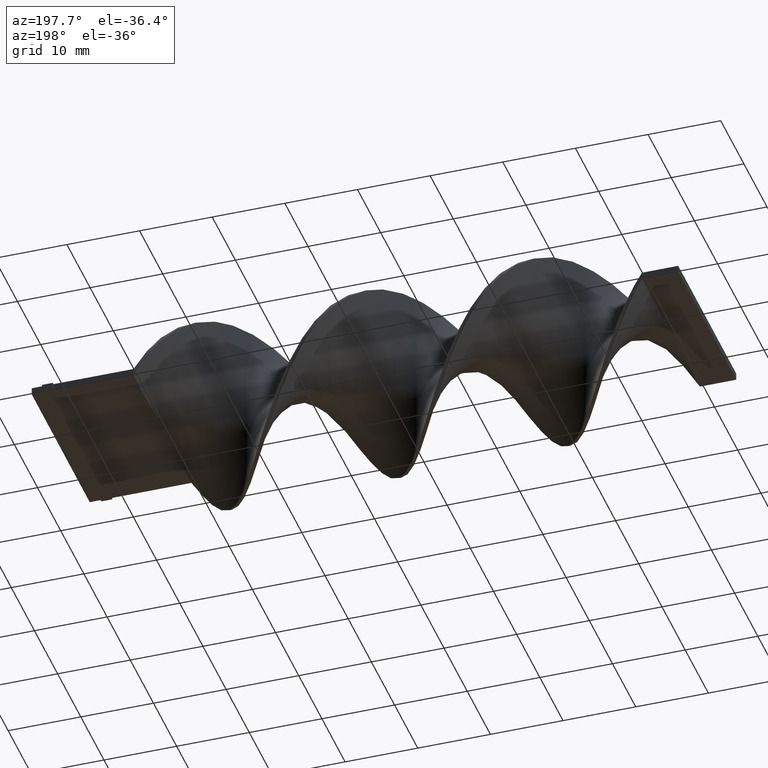
[diagram: clean part render]
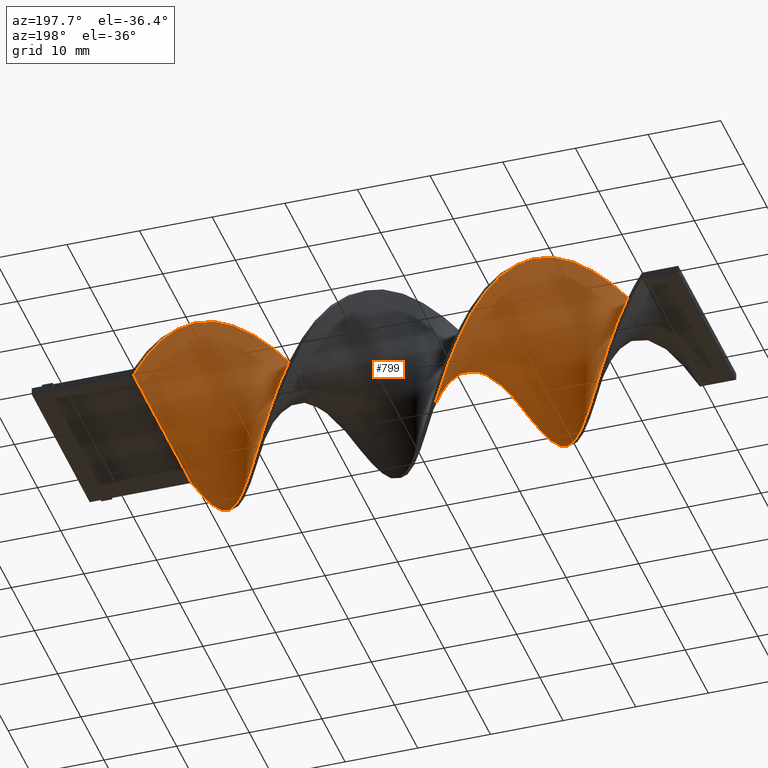
[diagram: same view with one face highlighted and labeled with its STEP entity id]
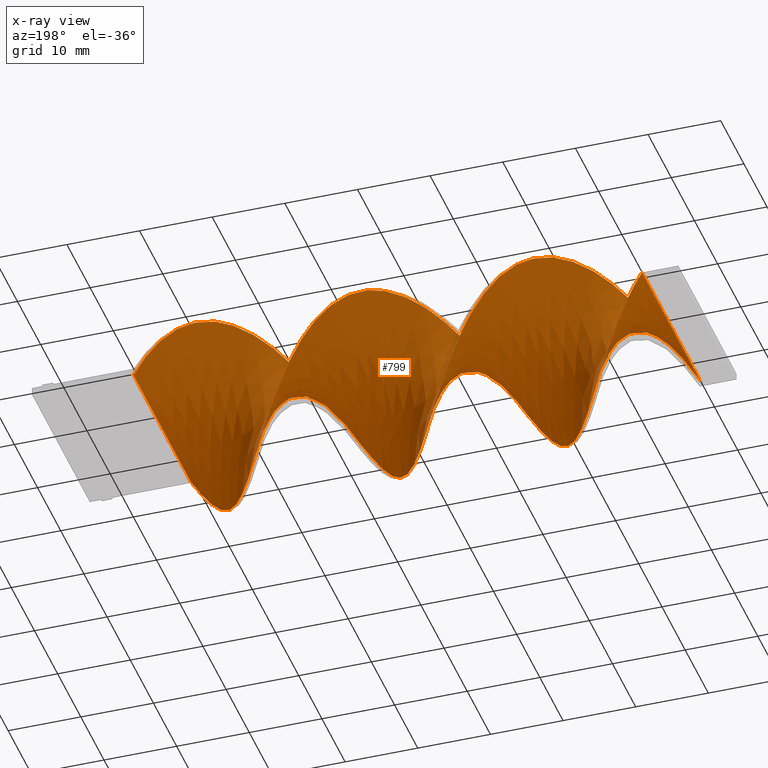
[diagram: x-ray of the same camera — body ghosted, the highlighted face saturated]
A machine part, auxiliary view. The second image highlights one B-rep face of the part: STEP entity #799.
The next image is the same camera in x-ray: the body ghosted, the highlighted face saturated — about 0% of this face is hidden behind the body in this view.
In plain terms, the highlighted face is a freeform B-spline surface patch.
Its self-contained STEP definition (entity closure, byte-faithful):
#1 = ORIENTED_EDGE ( 'NONE', *, *, #1241, .T. ) ;
#3 = CARTESIAN_POINT ( 'NONE',  ( -84.00000000000000000, -12.50000000000000178, 0.5000000000000015543 ) ) ;
#5 = CARTESIAN_POINT ( 'NONE',  ( -13.99999999999999467, -12.50000000000000178, -0.5000000000000000000 ) ) ;
#8 = CARTESIAN_POINT ( 'NONE',  ( -25.66666666666666785, 0.5036723384328388731, -12.59180846082103855 ) ) ;
#16 = CARTESIAN_POINT ( 'NONE',  ( -41.82051282051281760, 10.07673670631160867, 7.567476692410682659 ) ) ;
#24 = CARTESIAN_POINT ( 'NONE',  ( -84.00000000000000000, -12.50000000000000178, 0.5000000000000015543 ) ) ;
#25 = CARTESIAN_POINT ( 'NONE',  ( -70.53846153846153300, 3.502453542048288071, 12.10537671137499238 ) ) ;
#34 = CARTESIAN_POINT ( 'NONE',  ( -76.82051282051281760, -6.689317401192620416, 10.57133069703628436 ) ) ;
#40 = CARTESIAN_POINT ( 'NONE',  ( -21.17948717948717530, -6.689317401192623080, -10.57133069703628259 ) ) ;
#42 = CARTESIAN_POINT ( 'NONE',  ( -64.25641025641024839, -10.83583873464324299, -6.251767663373711592 ) ) ;
#45 = CARTESIAN_POINT ( 'NONE',  ( -31.94871794871794535, -9.024823023018365475, 8.663288602095494895 ) ) ;
#46 = CARTESIAN_POINT ( 'NONE',  ( -57.97435897435897090, 11.59494076297487197, -4.936058634336744966 ) ) ;
#49 = CARTESIAN_POINT ( 'NONE',  ( -24.76923076923076650, -1.010354066142515217, -12.46912926635333640 ) ) ;
#50 = CARTESIAN_POINT ( 'NONE',  ( -32.84615384615384670, -10.07673670631160689, 7.567476692410685324 ) ) ;
#56 = CARTESIAN_POINT ( 'NONE',  ( -55.28205128205128460, -9.687945681259160224, 7.914777853924392481 ) ) ;
#57 = CARTESIAN_POINT ( 'NONE',  ( -83.10256410256410220, 12.56071099161113303, -1.017774790278262564 ) ) ;
#62 = CARTESIAN_POINT ( 'NONE',  ( -31.05128205128205821, -7.972909339725124056, 9.759100511780301801 ) ) ;
#64 = CARTESIAN_POINT ( 'NONE',  ( -49.00000000000000000, -0.5036723384328410935, 12.59180846082103855 ) ) ;
#65 = CARTESIAN_POINT ( 'NONE',  ( -24.76923076923076650, 2.003062940240565304, 12.34859258609801458 ) ) ;
#71 = CARTESIAN_POINT ( 'NONE',  ( -56.17948717948717530, -10.64897370504628960, 6.738448275956371525 ) ) ;
#73 = CARTESIAN_POINT ( 'NONE',  ( -59.76923076923077360, 12.43928900838886875, -2.017774790278263897 ) ) ;
#85 = CARTESIAN_POINT ( 'NONE',  ( -13.99999999999999822, 12.49999999999999822, -0.5000000000000000000 ) ) ;
#89 = CARTESIAN_POINT ( 'NONE',  ( -56.17948717948717530, 10.07673670631160334, -7.567476692410687100 ) ) ;
#92 = CARTESIAN_POINT ( 'NONE',  ( -24.76923076923076650, 2.003062940240565304, 12.34859258609801458 ) ) ;
#95 = CARTESIAN_POINT ( 'NONE',  ( -37.33333333333332860, -12.50000000000000178, 0.5000000000000015543 ) ) ;
#98 = CARTESIAN_POINT ( 'NONE',  ( -60.66666666666666430, 12.49999999999999822, -0.5000000000000000000 ) ) ;
#104 = CARTESIAN_POINT ( 'NONE',  ( -75.92307692307691980, -5.405725462660114111, 11.38356088229227048 ) ) ;
#110 = CARTESIAN_POINT ( 'NONE',  ( -80.41025641025640880, -10.83583873464324121, 6.251767663373713368 ) ) ;
#121 = CARTESIAN_POINT ( 'NONE',  ( -40.92307692307691980, 10.83583873464323943, 6.251767663373710704 ) ) ;
#124 = CARTESIAN_POINT ( 'NONE',  ( -13.99999999999999467, -12.50000000000000178, -0.5000000000000000000 ) ) ;
#125 = CARTESIAN_POINT ( 'NONE',  ( -44.51282051282050389, 6.689317401192619528, 10.57133069703628259 ) ) ;
#133 = EDGE_LOOP ( 'NONE', ( #785, #1, #579, #1595 ) ) ;
#134 = CARTESIAN_POINT ( 'NONE',  ( -67.84615384615385381, 7.512301267086275658, 10.00326595030512777 ) ) ;
#137 = CARTESIAN_POINT ( 'NONE',  ( -40.92307692307691980, -11.30056190668700999, -5.366311637720500904 ) ) ;
#141 = CARTESIAN_POINT ( 'NONE',  ( -34.64102564102564230, 11.95215010832772684, -3.994174999484638722 ) ) ;
#152 = CARTESIAN_POINT ( 'NONE',  ( -80.41025641025640880, -10.83583873464324121, 6.251767663373713368 ) ) ;
#159 = CARTESIAN_POINT ( 'NONE',  ( -36.43589743589743080, 12.56071099161113125, -1.017774790278262564 ) ) ;
#160 = CARTESIAN_POINT ( 'NONE',  ( -67.84615384615385381, -6.689317401192623080, -10.57133069703628259 ) ) ;
#167 = CARTESIAN_POINT ( 'NONE',  ( -37.33333333333332860, 12.49999999999999822, 0.4999999999999985012 ) ) ;
#168 = CARTESIAN_POINT ( 'NONE',  ( -75.02564102564102200, 4.900069209374399826, -11.51040059004641769 ) ) ;
#174 = CARTESIAN_POINT ( 'NONE',  ( -48.10256410256409509, 1.010354066142515661, 12.46912926635333818 ) ) ;
#175 = CARTESIAN_POINT ( 'NONE',  ( -79.51282051282051100, 10.64897370504628604, -6.738448275956369748 ) ) ;
#180 = CARTESIAN_POINT ( 'NONE',  ( -70.53846153846153300, -2.524380470717866309, -12.34645007188563959 ) ) ;
#182 = CARTESIAN_POINT ( 'NONE',  ( -21.17948717948717885, 7.512301267086275658, 10.00326595030512777 ) ) ;
#186 = CARTESIAN_POINT ( 'NONE',  ( -30.15384615384614975, 7.512301267086272993, -10.00326595030512955 ) ) ;
#187 = CARTESIAN_POINT ( 'NONE',  ( -30.15384615384615330, -6.689317401192620416, 10.57133069703628436 ) ) ;
#189 = CARTESIAN_POINT ( 'NONE',  ( -59.76923076923077360, -12.56071099161113658, 1.017774790278264119 ) ) ;
#202 = CARTESIAN_POINT ( 'NONE',  ( -46.30769230769230660, -4.900069209374408707, -11.51040059004641591 ) ) ;
#203 = VERTEX_POINT ( 'NONE', #1112 ) ;
#206 = CARTESIAN_POINT ( 'NONE',  ( -57.97435897435897090, 11.59494076297487197, -4.936058634336744966 ) ) ;
#217 = CARTESIAN_POINT ( 'NONE',  ( -68.74358974358973740, 6.297684876700516021, 10.91542446871784655 ) ) ;
#224 = CARTESIAN_POINT ( 'NONE',  ( -28.35897435897435770, -3.965052966688987546, 11.86500547708895326 ) ) ;
#225 = CARTESIAN_POINT ( 'NONE',  ( -79.51282051282051100, 10.64897370504628604, -6.738448275956368860 ) ) ;
#227 = CARTESIAN_POINT ( 'NONE',  ( -60.66666666666666430, 12.49999999999999822, -0.5000000000000000000 ) ) ;
#231 = CARTESIAN_POINT ( 'NONE',  ( -62.46153846153845990, 12.25643054996942816, 2.505974894881445980 ) ) ;
#233 = CARTESIAN_POINT ( 'NONE',  ( -49.89743589743589069, 1.010354066142500118, -12.46912926635333818 ) ) ;
#248 = CARTESIAN_POINT ( 'NONE',  ( -78.61538461538461320, -9.024823023018365475, 8.663288602095494895 ) ) ;
#255 = CARTESIAN_POINT ( 'NONE',  ( -13.99999999999999822, 12.49999999999999822, -0.5000000000000000000 ) ) ;
#256 = CARTESIAN_POINT ( 'NONE',  ( -30.15384615384614975, 7.512301267086272993, -10.00326595030512955 ) ) ;
#265 = CARTESIAN_POINT ( 'NONE',  ( -35.53846153846153300, 12.25643054996942816, -2.505974894881450421 ) ) ;
#273 = CARTESIAN_POINT ( 'NONE',  ( -64.25641025641024839, 11.30056190668700822, 5.366311637720501793 ) ) ;
#278 = CARTESIAN_POINT ( 'NONE',  ( -57.07692307692306599, -11.30056190668700644, 5.366311637720509786 ) ) ;
#281 = CARTESIAN_POINT ( 'NONE',  ( -63.35897435897434349, -11.59494076297487730, -4.936058634336738749 ) ) ;
#286 = CARTESIAN_POINT ( 'NONE',  ( -22.97435897435896734, -3.965052966688991098, -11.86500547708895148 ) ) ;
#287 = CARTESIAN_POINT ( 'NONE',  ( -31.05128205128205465, -7.972909339725124944, 9.759100511780301801 ) ) ;
#294 = CARTESIAN_POINT ( 'NONE',  ( -40.02564102564101489, 11.59494076297487375, 4.936058634336734308 ) ) ;
#296 = CARTESIAN_POINT ( 'NONE',  ( -34.64102564102564230, -11.59494076297487553, 4.936058634336743189 ) ) ;
#304 = CARTESIAN_POINT ( 'NONE',  ( -69.64102564102563520, -3.965052966688991098, -11.86500547708895148 ) ) ;
#306 = CARTESIAN_POINT ( 'NONE',  ( -73.23076923076922640, 2.003062940240561307, -12.34859258609801458 ) ) ;
#309 = CARTESIAN_POINT ( 'NONE',  ( -32.84615384615384670, -10.07673670631160867, 7.567476692410685324 ) ) ;
#312 = CARTESIAN_POINT ( 'NONE',  ( -36.43589743589743790, -12.43928900838887230, 2.017774790278262564 ) ) ;
#313 = CARTESIAN_POINT ( 'NONE',  ( -52.58974358974358410, 5.405725462660103453, -11.38356088229227048 ) ) ;
#315 = CARTESIAN_POINT ( 'NONE',  ( -57.97435897435897090, -11.95215010832773039, 3.994174999484640498 ) ) ;
#316 =( BOUNDED_SURFACE ( )  B_SPLINE_SURFACE ( 1, 2, ( 
 ( #85, #1110, #835, #1468, #1331, #978, #1577, #960, #364, #344, #486, #1220, #92, #353, #847, #1348, #224, #724, #187, #62, #45, #309, #1447, #830, #1067, #312, #509, #1024, #384, #1378, #137, #526, #1014, #1396, #829, #330, #202, #1195, #940, #1437, #320, #1326, #1307, #313, #687, #457, #643, #854, #1073, #46, #625, #73, #98, #1116, #231, #1385, #273, #651, #532, #1021, #134, #1130, #390, #25, #905, #522, #896, #761, #1408, #1010, #34, #1002, #248, #871, #152, #1271, #1283, #402, #3 ),
 ( #1159, #1500, #1493, #382, #417, #642, #659, #540, #410, #779, #1401, #1516, #1266, #8, #880, #1032, #1523, #1386, #256, #514, #1374, #888, #1144, #141, #265, #742, #1394, #1247, #752, #1257, #121, #16, #629, #1508, #125, #508, #770, #996, #635, #1134, #1150, #788, #938, #1061, #668, #1081, #1309, #71, #1547, #1295, #549, #189, #1562, #561, #1430, #281, #42, #1315, #944, #444, #160, #1302, #1422, #915, #1168, #1185, #306, #1435, #168, #1414, #438, #1290, #452, #175, #681, #1178, #694, #57, #923 ) ),
 .UNSPECIFIED., .F., .F., .F. ) 
 B_SPLINE_SURFACE_WITH_KNOTS ( ( 2, 2 ),
 ( 3, 2, 2, 2, 2, 2, 2, 2, 2, 2, 2, 2, 2, 2, 2, 2, 2, 2, 2, 2, 2, 2, 2, 2, 2, 2, 2, 2, 2, 2, 2, 2, 2, 2, 2, 2, 2, 2, 2, 3 ),
 ( 0.000000000000000000, 1.000000000000000000 ),
 ( 0.000000000000000000, 0.01923076923076923184, 0.03846153846153846367, 0.05769230769230769551, 0.07692307692307692735, 0.09615384615384615918, 0.1153846153846153910, 0.1346153846153846090, 0.1538461538461538547, 0.1730769230769230727, 0.1923076923076923184, 0.2115384615384615363, 0.2307692307692307820, 0.2500000000000000000, 0.2692307692307692180, 0.2884615384615384359, 0.3076923076923077094, 0.3269230769230769273, 0.3461538461538461453, 0.3653846153846153633, 0.3846153846153846367, 0.4038461538461538547, 0.4230769230769230727, 0.4423076923076922906, 0.4615384615384615641, 0.4807692307692307820, 0.5000000000000000000, 0.5192307692307692735, 0.5384615384615384359, 0.5576923076923077094, 0.5769230769230768718, 0.5961538461538461453, 0.6153846153846154188, 0.6346153846153845812, 0.6538461538461538547, 0.6730769230769231282, 0.6923076923076922906, 0.7115384615384615641, 0.7307692307692307265, 0.7500000000000000000 ),
 .UNSPECIFIED. ) 
 GEOMETRIC_REPRESENTATION_ITEM ( )  RATIONAL_B_SPLINE_SURFACE ( (
 ( 1.000000000000000000, 0.9927088740980539727, 1.000000000000000000, 0.9927088740980539727, 1.000000000000000000, 0.9927088740980539727, 1.000000000000000000, 0.9927088740980539727, 1.000000000000000000, 0.9927088740980539727, 1.000000000000000000, 0.9927088740980539727, 1.000000000000000000, 0.9927088740980539727, 1.000000000000000000, 0.9927088740980539727, 1.000000000000000000, 0.9927088740980539727, 1.000000000000000000, 0.9927088740980539727, 1.000000000000000000, 0.9927088740980539727, 1.000000000000000000, 0.9927088740980539727, 1.000000000000000000, 0.9927088740980539727, 1.000000000000000000, 0.9927088740980539727, 1.000000000000000000, 0.9927088740980539727, 1.000000000000000000, 0.9927088740980539727, 1.000000000000000000, 0.9927088740980539727, 1.000000000000000000, 0.9927088740980539727, 1.000000000000000000, 0.9927088740980539727, 1.000000000000000000, 0.9927088740980539727, 1.000000000000000000, 0.9927088740980539727, 1.000000000000000000, 0.9927088740980539727, 1.000000000000000000, 0.9927088740980539727, 1.000000000000000000, 0.9927088740980539727, 1.000000000000000000, 0.9927088740980539727, 1.000000000000000000, 0.9927088740980539727, 1.000000000000000000, 0.9927088740980539727, 1.000000000000000000, 0.9927088740980539727, 1.000000000000000000, 0.9927088740980539727, 1.000000000000000000, 0.9927088740980539727, 1.000000000000000000, 0.9927088740980539727, 1.000000000000000000, 0.9927088740980539727, 1.000000000000000000, 0.9927088740980539727, 1.000000000000000000, 0.9927088740980539727, 1.000000000000000000, 0.9927088740980539727, 1.000000000000000000, 0.9927088740980539727, 1.000000000000000000, 0.9927088740980539727, 1.000000000000000000, 0.9927088740980539727, 1.000000000000000000, 0.9927088740980539727, 1.000000000000000000),
 ( 1.000000000000000000, 0.9927088740980539727, 1.000000000000000000, 0.9927088740980539727, 1.000000000000000000, 0.9927088740980539727, 1.000000000000000000, 0.9927088740980539727, 1.000000000000000000, 0.9927088740980539727, 1.000000000000000000, 0.9927088740980539727, 1.000000000000000000, 0.9927088740980539727, 1.000000000000000000, 0.9927088740980539727, 1.000000000000000000, 0.9927088740980539727, 1.000000000000000000, 0.9927088740980539727, 1.000000000000000000, 0.9927088740980539727, 1.000000000000000000, 0.9927088740980539727, 1.000000000000000000, 0.9927088740980539727, 1.000000000000000000, 0.9927088740980539727, 1.000000000000000000, 0.9927088740980539727, 1.000000000000000000, 0.9927088740980539727, 1.000000000000000000, 0.9927088740980539727, 1.000000000000000000, 0.9927088740980539727, 1.000000000000000000, 0.9927088740980539727, 1.000000000000000000, 0.9927088740980539727, 1.000000000000000000, 0.9927088740980539727, 1.000000000000000000, 0.9927088740980539727, 1.000000000000000000, 0.9927088740980539727, 1.000000000000000000, 0.9927088740980539727, 1.000000000000000000, 0.9927088740980539727, 1.000000000000000000, 0.9927088740980539727, 1.000000000000000000, 0.9927088740980539727, 1.000000000000000000, 0.9927088740980539727, 1.000000000000000000, 0.9927088740980539727, 1.000000000000000000, 0.9927088740980539727, 1.000000000000000000, 0.9927088740980539727, 1.000000000000000000, 0.9927088740980539727, 1.000000000000000000, 0.9927088740980539727, 1.000000000000000000, 0.9927088740980539727, 1.000000000000000000, 0.9927088740980539727, 1.000000000000000000, 0.9927088740980539727, 1.000000000000000000, 0.9927088740980539727, 1.000000000000000000, 0.9927088740980539727, 1.000000000000000000, 0.9927088740980539727, 1.000000000000000000) ) ) 
 REPRESENTATION_ITEM ( '' )  SURFACE ( )  );
#317 = CARTESIAN_POINT ( 'NONE',  ( -13.99999999999999822, 12.49999999999999822, -0.5000000000000000000 ) ) ;
#320 = CARTESIAN_POINT ( 'NONE',  ( -49.89743589743589069, 1.010354066142500118, -12.46912926635333818 ) ) ;
#325 = CARTESIAN_POINT ( 'NONE',  ( -45.41025641025640880, -6.297684876700524903, -10.91542446871784122 ) ) ;
#330 = CARTESIAN_POINT ( 'NONE',  ( -45.41025641025640880, -6.297684876700524903, -10.91542446871784122 ) ) ;
#338 = CARTESIAN_POINT ( 'NONE',  ( -38.23076923076922640, -12.56071099161113480, -1.017774790278253905 ) ) ;
#344 = CARTESIAN_POINT ( 'NONE',  ( -22.07692307692308376, 6.297684876700516909, 10.91542446871784477 ) ) ;
#346 = CARTESIAN_POINT ( 'NONE',  ( -76.82051282051281760, -6.689317401192620416, 10.57133069703628436 ) ) ;
#353 = CARTESIAN_POINT ( 'NONE',  ( -25.66666666666666785, 0.5036723384328402053, 12.59180846082103855 ) ) ;
#357 = CARTESIAN_POINT ( 'NONE',  ( -72.33333333333332860, 0.5036723384328403164, 12.59180846082103855 ) ) ;
#364 = CARTESIAN_POINT ( 'NONE',  ( -21.17948717948717885, 7.512301267086275658, 10.00326595030512777 ) ) ;
#368 = CARTESIAN_POINT ( 'NONE',  ( -66.94871794871795601, 8.726917657472036183, 9.091107431892412549 ) ) ;
#382 = CARTESIAN_POINT ( 'NONE',  ( -16.69230769230769340, -11.59494076297487730, -4.936058634336738749 ) ) ;
#384 = CARTESIAN_POINT ( 'NONE',  ( -39.12820512820512420, -12.25643054996943171, -2.505974894881441539 ) ) ;
#390 = CARTESIAN_POINT ( 'NONE',  ( -69.64102564102564941, 4.900069209374403378, 11.51040059004641591 ) ) ;
#402 = CARTESIAN_POINT ( 'NONE',  ( -83.10256410256410220, -12.43928900838887230, 2.017774790278262564 ) ) ;
#409 = CARTESIAN_POINT ( 'NONE',  ( -84.00000000000000000, 4.166666666666666075, 0.4999999999999994449 ) ) ;
#410 = CARTESIAN_POINT ( 'NONE',  ( -21.17948717948717530, -6.689317401192623080, -10.57133069703628259 ) ) ;
#415 = CARTESIAN_POINT ( 'NONE',  ( -39.12820512820512420, 12.01711488568187214, 3.476916712307494439 ) ) ;
#417 = CARTESIAN_POINT ( 'NONE',  ( -17.58974358974358410, -10.83583873464324299, -6.251767663373711592 ) ) ;
#427 = CARTESIAN_POINT ( 'NONE',  ( -67.84615384615385381, -6.689317401192623080, -10.57133069703628259 ) ) ;
#430 = CARTESIAN_POINT ( 'NONE',  ( -25.66666666666666785, 0.5036723384328403164, 12.59180846082103855 ) ) ;
#437 = CARTESIAN_POINT ( 'NONE',  ( -61.56410256410256920, -12.43928900838887230, -2.017774790278256791 ) ) ;
#438 = CARTESIAN_POINT ( 'NONE',  ( -76.82051282051281760, 7.512301267086272993, -10.00326595030512955 ) ) ;
#442 = CARTESIAN_POINT ( 'NONE',  ( -20.28205128205128105, -7.972909339725130273, -9.759100511780298248 ) ) ;
#444 = CARTESIAN_POINT ( 'NONE',  ( -66.94871794871792758, -7.972909339725129385, -9.759100511780298248 ) ) ;
#450 = CARTESIAN_POINT ( 'NONE',  ( -46.30769230769229949, 3.965052966688989322, 11.86500547708895148 ) ) ;
#452 = CARTESIAN_POINT ( 'NONE',  ( -78.61538461538461320, 9.687945681259156672, -7.914777853924392481 ) ) ;
#457 = CARTESIAN_POINT ( 'NONE',  ( -54.38461538461538680, 7.972909339725115174, -9.759100511780305354 ) ) ;
#459 = CARTESIAN_POINT ( 'NONE',  ( -30.15384615384615330, -6.689317401192620416, 10.57133069703628436 ) ) ;
#469 = CARTESIAN_POINT ( 'NONE',  ( -46.30769230769230660, -4.900069209374408707, -11.51040059004641591 ) ) ;
#486 = CARTESIAN_POINT ( 'NONE',  ( -22.97435897435897090, 4.900069209374403378, 11.51040059004641591 ) ) ;
#488 = CARTESIAN_POINT ( 'NONE',  ( -63.35897435897436480, 11.95215010832772862, 3.994174999484634281 ) ) ;
#494 = CARTESIAN_POINT ( 'NONE',  ( -54.38461538461538680, 7.972909339725116062, -9.759100511780305354 ) ) ;
#500 = CARTESIAN_POINT ( 'NONE',  ( -77.71794871794874382, -7.972909339725124944, 9.759100511780301801 ) ) ;
#507 = LINE ( 'NONE', #885, #1455 ) ;
#508 = CARTESIAN_POINT ( 'NONE',  ( -45.41025641025640880, 5.405725462660119440, 11.38356088229226515 ) ) ;
#509 = CARTESIAN_POINT ( 'NONE',  ( -37.33333333333332860, -12.50000000000000178, 0.5000000000000015543 ) ) ;
#512 = CARTESIAN_POINT ( 'NONE',  ( -14.89743589743589247, -12.43928900838887230, -2.017774790278256791 ) ) ;
#514 = CARTESIAN_POINT ( 'NONE',  ( -31.05128205128205465, 8.726917657472030854, -9.091107431892414326 ) ) ;
#522 = CARTESIAN_POINT ( 'NONE',  ( -72.33333333333332860, 0.5036723384328402053, 12.59180846082103855 ) ) ;
#526 = CARTESIAN_POINT ( 'NONE',  ( -41.82051282051281760, -10.64897370504629315, -6.738448275956367084 ) ) ;
#532 = CARTESIAN_POINT ( 'NONE',  ( -66.05128205128204399, 9.687945681259160224, 7.914777853924387152 ) ) ;
#537 = CARTESIAN_POINT ( 'NONE',  ( -56.17948717948717530, -10.64897370504628960, 6.738448275956370637 ) ) ;
#540 = CARTESIAN_POINT ( 'NONE',  ( -20.28205128205128105, -7.972909339725129385, -9.759100511780298248 ) ) ;
#546 = CARTESIAN_POINT ( 'NONE',  ( -72.33333333333332860, 0.5036723384328388731, -12.59180846082103855 ) ) ;
#549 = CARTESIAN_POINT ( 'NONE',  ( -58.87179487179486159, -12.25643054996942993, 2.505974894881457526 ) ) ;
#554 = CARTESIAN_POINT ( 'NONE',  ( -29.25641025641025550, 6.297684876700515133, -10.91542446871784655 ) ) ;
#555 = CARTESIAN_POINT ( 'NONE',  ( -19.38461538461538325, 9.687945681259160224, 7.914777853924387152 ) ) ;
#560 = CARTESIAN_POINT ( 'NONE',  ( -66.05128205128204399, -9.024823023018369028, -8.663288602095489566 ) ) ;
#561 = CARTESIAN_POINT ( 'NONE',  ( -61.56410256410256920, -12.43928900838887230, -2.017774790278256791 ) ) ;
#569 = CARTESIAN_POINT ( 'NONE',  ( -25.66666666666666785, 0.5036723384328388731, -12.59180846082103855 ) ) ;
#579 = ORIENTED_EDGE ( 'NONE', *, *, #1600, .F. ) ;
#580 = CARTESIAN_POINT ( 'NONE',  ( -23.87179487179487580, 3.502453542048288071, 12.10537671137499238 ) ) ;
#586 = CARTESIAN_POINT ( 'NONE',  ( -42.71794871794872250, -9.687945681259165553, -7.914777853924385376 ) ) ;
#593 = CARTESIAN_POINT ( 'NONE',  ( -81.30769230769232081, 11.95215010832772684, -3.994174999484638722 ) ) ;
#604 = CARTESIAN_POINT ( 'NONE',  ( -41.82051282051281760, -10.64897370504629315, -6.738448275956366196 ) ) ;
#610 = CARTESIAN_POINT ( 'NONE',  ( -52.58974358974359120, 5.405725462660103453, -11.38356088229227225 ) ) ;
#617 = CARTESIAN_POINT ( 'NONE',  ( -58.87179487179486870, 12.01711488568186681, -3.476916712307509094 ) ) ;
#625 = CARTESIAN_POINT ( 'NONE',  ( -58.87179487179486870, 12.01711488568186681, -3.476916712307509094 ) ) ;
#629 = CARTESIAN_POINT ( 'NONE',  ( -42.71794871794871540, 9.024823023018367252, 8.663288602095487789 ) ) ;
#635 = CARTESIAN_POINT ( 'NONE',  ( -48.10256410256409509, 1.010354066142515661, 12.46912926635333818 ) ) ;
#642 = CARTESIAN_POINT ( 'NONE',  ( -18.48717948717948545, -10.07673670631161045, -7.567476692410683548 ) ) ;
#643 = CARTESIAN_POINT ( 'NONE',  ( -55.28205128205128460, 9.024823023018360146, -8.663288602095494895 ) ) ;
#651 = CARTESIAN_POINT ( 'NONE',  ( -65.15384615384614619, 10.64897370504628782, 6.738448275956367972 ) ) ;
#659 = CARTESIAN_POINT ( 'NONE',  ( -19.38461538461537970, -9.024823023018369028, -8.663288602095489566 ) ) ;
#666 = CARTESIAN_POINT ( 'NONE',  ( -64.25641025641024839, -10.83583873464324299, -6.251767663373711592 ) ) ;
#668 = CARTESIAN_POINT ( 'NONE',  ( -53.48717948717948900, -7.512301267086274770, 10.00326595030513133 ) ) ;
#673 = CARTESIAN_POINT ( 'NONE',  ( -75.92307692307690559, 6.297684876700515133, -10.91542446871784655 ) ) ;
#674 = CARTESIAN_POINT ( 'NONE',  ( -20.28205128205128460, 8.726917657472036183, 9.091107431892412549 ) ) ;
#679 = CARTESIAN_POINT ( 'NONE',  ( -59.76923076923076650, -12.56071099161113480, 1.017774790278263897 ) ) ;
#681 = CARTESIAN_POINT ( 'NONE',  ( -80.41025641025640880, 11.30056190668700644, -5.366311637720503569 ) ) ;
#687 = CARTESIAN_POINT ( 'NONE',  ( -53.48717948717948900, 6.689317401192615087, -10.57133069703628614 ) ) ;
#688 = CARTESIAN_POINT ( 'NONE',  ( -23.87179487179487225, -2.524380470717866309, -12.34645007188563959 ) ) ;
#690 = CARTESIAN_POINT ( 'NONE',  ( -18.48717948717948545, 10.64897370504628782, 6.738448275956367084 ) ) ;
#693 = CARTESIAN_POINT ( 'NONE',  ( -31.94871794871793824, 9.687945681259156672, -7.914777853924392481 ) ) ;
#694 = CARTESIAN_POINT ( 'NONE',  ( -82.20512820512820440, 12.25643054996942816, -2.505974894881450421 ) ) ;
#700 = FACE_OUTER_BOUND ( 'NONE', #133, .T. ) ;
#703 = CARTESIAN_POINT ( 'NONE',  ( -67.84615384615385381, 7.512301267086275658, 10.00326595030512777 ) ) ;
#710 = CARTESIAN_POINT ( 'NONE',  ( -79.51282051282051100, -10.07673670631160689, 7.567476692410685324 ) ) ;
#717 = CARTESIAN_POINT ( 'NONE',  ( -53.48717948717948900, 6.689317401192615087, -10.57133069703628614 ) ) ;
#724 = CARTESIAN_POINT ( 'NONE',  ( -29.25641025641025905, -5.405725462660114999, 11.38356088229226870 ) ) ;
#726 = CARTESIAN_POINT ( 'NONE',  ( -61.56410256410256920, 12.56071099161113125, 1.017774790278256569 ) ) ;
#732 = CARTESIAN_POINT ( 'NONE',  ( -73.23076923076924061, -1.010354066142510998, 12.46912926635333640 ) ) ;
#742 = CARTESIAN_POINT ( 'NONE',  ( -36.43589743589743080, 12.56071099161113303, -1.017774790278262564 ) ) ;
#752 = CARTESIAN_POINT ( 'NONE',  ( -39.12820512820512420, 12.01711488568187214, 3.476916712307494439 ) ) ;
#761 = CARTESIAN_POINT ( 'NONE',  ( -74.12820512820512420, -2.524380470717864977, 12.34645007188564136 ) ) ;
#770 = CARTESIAN_POINT ( 'NONE',  ( -46.30769230769229949, 3.965052966688989322, 11.86500547708895148 ) ) ;
#779 = CARTESIAN_POINT ( 'NONE',  ( -22.07692307692307665, -5.405725462660116776, -11.38356088229226870 ) ) ;
#785 = ORIENTED_EDGE ( 'NONE', *, *, #1094, .T. ) ;
#786 = CARTESIAN_POINT ( 'NONE',  ( -51.69230769230769340, -4.900069209374404267, 11.51040059004641769 ) ) ;
#788 = CARTESIAN_POINT ( 'NONE',  ( -50.79487179487178139, -3.502453542048286295, 12.10537671137499238 ) ) ;
#794 = CARTESIAN_POINT ( 'NONE',  ( -32.84615384615384670, 10.64897370504628604, -6.738448275956368860 ) ) ;
#795 = CARTESIAN_POINT ( 'NONE',  ( -31.94871794871794535, -9.024823023018365475, 8.663288602095494895 ) ) ;
#799 = ADVANCED_FACE ( 'NONE', ( #700 ), #316, .T. ) ;
#800 = CARTESIAN_POINT ( 'NONE',  ( -54.38461538461537970, -8.726917657472029077, 9.091107431892417878 ) ) ;
#802 = CARTESIAN_POINT ( 'NONE',  ( -35.53846153846153300, -12.01711488568187214, 3.476916712307501989 ) ) ;
#810 = CARTESIAN_POINT ( 'NONE',  ( -40.92307692307691980, 10.83583873464323943, 6.251767663373710704 ) ) ;
#811 = CARTESIAN_POINT ( 'NONE',  ( -15.79487179487179205, 12.25643054996942816, 2.505974894881445980 ) ) ;
#815 = CARTESIAN_POINT ( 'NONE',  ( -66.94871794871794179, -7.972909339725130273, -9.759100511780298248 ) ) ;
#817 = CARTESIAN_POINT ( 'NONE',  ( -27.46153846153846345, -2.524380470717864977, 12.34645007188563959 ) ) ;
#829 = CARTESIAN_POINT ( 'NONE',  ( -44.51282051282051100, -7.512301267086279211, -10.00326595030512777 ) ) ;
#830 = CARTESIAN_POINT ( 'NONE',  ( -34.64102564102564230, -11.59494076297487553, 4.936058634336743189 ) ) ;
#832 = EDGE_CURVE ( 'NONE', #1236, #1362, #1591, .T. ) ;
#835 = CARTESIAN_POINT ( 'NONE',  ( -15.79487179487179205, 12.25643054996942816, 2.505974894881445980 ) ) ;
#837 = CARTESIAN_POINT ( 'NONE',  ( -74.12820512820510999, -2.524380470717864977, 12.34645007188563959 ) ) ;
#843 = CARTESIAN_POINT ( 'NONE',  ( -51.69230769230769340, 3.965052966688984881, -11.86500547708895326 ) ) ;
#847 = CARTESIAN_POINT ( 'NONE',  ( -26.56410256410256210, -1.010354066142510998, 12.46912926635333640 ) ) ;
#851 = CARTESIAN_POINT ( 'NONE',  ( -36.43589743589743790, -12.43928900838887230, 2.017774790278262564 ) ) ;
#854 = CARTESIAN_POINT ( 'NONE',  ( -56.17948717948717530, 10.07673670631160512, -7.567476692410687100 ) ) ;
#858 = CARTESIAN_POINT ( 'NONE',  ( -71.43589743589743080, 2.003062940240565304, 12.34859258609801458 ) ) ;
#871 = CARTESIAN_POINT ( 'NONE',  ( -79.51282051282051100, -10.07673670631160867, 7.567476692410685324 ) ) ;
#877 = CARTESIAN_POINT ( 'NONE',  ( -18.48717948717948545, -10.07673670631160867, -7.567476692410683548 ) ) ;
#880 = CARTESIAN_POINT ( 'NONE',  ( -26.56410256410255855, 2.003062940240561307, -12.34859258609801458 ) ) ;
#885 = CARTESIAN_POINT ( 'NONE',  ( -13.99999999999999822, 12.49999999999999822, -0.5000000000000000000 ) ) ;
#888 = CARTESIAN_POINT ( 'NONE',  ( -32.84615384615384670, 10.64897370504628604, -6.738448275956369748 ) ) ;
#896 = CARTESIAN_POINT ( 'NONE',  ( -73.23076923076924061, -1.010354066142510998, 12.46912926635333640 ) ) ;
#902 = CARTESIAN_POINT ( 'NONE',  ( -42.71794871794871540, 9.024823023018367252, 8.663288602095487789 ) ) ;
#905 = CARTESIAN_POINT ( 'NONE',  ( -71.43589743589743080, 2.003062940240565304, 12.34859258609801458 ) ) ;
#912 = CARTESIAN_POINT ( 'NONE',  ( -74.12820512820510999, 3.502453542048286739, -12.10537671137499238 ) ) ;
#915 = CARTESIAN_POINT ( 'NONE',  ( -70.53846153846153300, -2.524380470717866309, -12.34645007188564136 ) ) ;
#921 = CARTESIAN_POINT ( 'NONE',  ( -62.46153846153845990, -12.01711488568187214, -3.476916712307497548 ) ) ;
#923 = CARTESIAN_POINT ( 'NONE',  ( -84.00000000000000000, 12.49999999999999822, 0.4999999999999985012 ) ) ;
#928 = CARTESIAN_POINT ( 'NONE',  ( -19.38461538461537970, -9.024823023018369028, -8.663288602095489566 ) ) ;
#929 = CARTESIAN_POINT ( 'NONE',  ( -14.89743589743589602, 12.56071099161113125, 1.017774790278256569 ) ) ;
#936 = CARTESIAN_POINT ( 'NONE',  ( -49.89743589743589069, -2.003062940240558198, 12.34859258609801635 ) ) ;
#938 = CARTESIAN_POINT ( 'NONE',  ( -51.69230769230769340, -4.900069209374404267, 11.51040059004641769 ) ) ;
#940 = CARTESIAN_POINT ( 'NONE',  ( -48.10256410256410220, -2.003062940240573742, -12.34859258609801280 ) ) ;
#944 = CARTESIAN_POINT ( 'NONE',  ( -66.05128205128204399, -9.024823023018369028, -8.663288602095489566 ) ) ;
#953 = CARTESIAN_POINT ( 'NONE',  ( -82.20512820512820440, 12.25643054996942816, -2.505974894881450421 ) ) ;
#954 = CARTESIAN_POINT ( 'NONE',  ( -62.46153846153845990, 12.25643054996942816, 2.505974894881445980 ) ) ;
#960 = CARTESIAN_POINT ( 'NONE',  ( -20.28205128205128460, 8.726917657472036183, 9.091107431892410773 ) ) ;
#963 = CARTESIAN_POINT ( 'NONE',  ( -66.05128205128204399, 9.687945681259160224, 7.914777853924387152 ) ) ;
#971 = CARTESIAN_POINT ( 'NONE',  ( -80.41025641025640880, 11.30056190668700644, -5.366311637720503569 ) ) ;
#973 = CARTESIAN_POINT ( 'NONE',  ( -70.53846153846153300, 3.502453542048288071, 12.10537671137499238 ) ) ;
#978 = CARTESIAN_POINT ( 'NONE',  ( -18.48717948717948545, 10.64897370504628782, 6.738448275956367972 ) ) ;
#979 = CARTESIAN_POINT ( 'NONE',  ( -76.82051282051281760, 7.512301267086272993, -10.00326595030512955 ) ) ;
#981 = CARTESIAN_POINT ( 'NONE',  ( -81.30769230769232081, -11.59494076297487553, 4.936058634336743189 ) ) ;
#990 = DIRECTION ( 'NONE',  ( 1.387778780781445676E-16, -1.000000000000000000, 0.000000000000000000 ) ) ;
#993 = VERTEX_POINT ( 'NONE', #124 ) ;
#996 = CARTESIAN_POINT ( 'NONE',  ( -47.20512820512820440, 2.524380470717861868, 12.34645007188564136 ) ) ;
#1001 = CARTESIAN_POINT ( 'NONE',  ( -16.69230769230768985, -11.59494076297487730, -4.936058634336738749 ) ) ;
#1002 = CARTESIAN_POINT ( 'NONE',  ( -77.71794871794872961, -7.972909339725124056, 9.759100511780301801 ) ) ;
#1010 = CARTESIAN_POINT ( 'NONE',  ( -75.92307692307693401, -5.405725462660114999, 11.38356088229226870 ) ) ;
#1014 = CARTESIAN_POINT ( 'NONE',  ( -42.71794871794872250, -9.687945681259165553, -7.914777853924385376 ) ) ;
#1021 = CARTESIAN_POINT ( 'NONE',  ( -66.94871794871794179, 8.726917657472036183, 9.091107431892410773 ) ) ;
#1024 = CARTESIAN_POINT ( 'NONE',  ( -38.23076923076922640, -12.56071099161113658, -1.017774790278253905 ) ) ;
#1028 = CARTESIAN_POINT ( 'NONE',  ( -58.87179487179486159, -12.25643054996942993, 2.505974894881457526 ) ) ;
#1032 = CARTESIAN_POINT ( 'NONE',  ( -27.46153846153845990, 3.502453542048287183, -12.10537671137499238 ) ) ;
#1038 = CARTESIAN_POINT ( 'NONE',  ( -28.35897435897435059, 4.900069209374399826, -11.51040059004641769 ) ) ;
#1042 = CARTESIAN_POINT ( 'NONE',  ( -17.58974358974358765, 11.30056190668700822, 5.366311637720501793 ) ) ;
#1049 = CARTESIAN_POINT ( 'NONE',  ( -43.61538461538461320, 7.972909339725128497, 9.759100511780294696 ) ) ;
#1053 = CARTESIAN_POINT ( 'NONE',  ( -26.56410256410256210, -1.010354066142510998, 12.46912926635333640 ) ) ;
#1057 = CARTESIAN_POINT ( 'NONE',  ( -45.41025641025640880, 5.405725462660118552, 11.38356088229226515 ) ) ;
#1061 = CARTESIAN_POINT ( 'NONE',  ( -52.58974358974357699, -6.297684876700514245, 10.91542446871784477 ) ) ;
#1067 = CARTESIAN_POINT ( 'NONE',  ( -35.53846153846153300, -12.01711488568187214, 3.476916712307501989 ) ) ;
#1068 = CARTESIAN_POINT ( 'NONE',  ( -27.46153846153845990, 3.502453542048286739, -12.10537671137499238 ) ) ;
#1069 = CARTESIAN_POINT ( 'NONE',  ( -16.69230769230769340, 11.95215010832772862, 3.994174999484634281 ) ) ;
#1073 = CARTESIAN_POINT ( 'NONE',  ( -57.07692307692307310, 10.83583873464323410, -6.251767663373719586 ) ) ;
#1081 = CARTESIAN_POINT ( 'NONE',  ( -54.38461538461537970, -8.726917657472029077, 9.091107431892417878 ) ) ;
#1087 = CARTESIAN_POINT ( 'NONE',  ( -75.02564102564102200, -3.965052966688987546, 11.86500547708895326 ) ) ;
#1092 = CARTESIAN_POINT ( 'NONE',  ( -40.02564102564102200, -11.95215010832773217, -3.994174999484630284 ) ) ;
#1094 = EDGE_CURVE ( 'NONE', #1236, #993, #507, .T. ) ;
#1105 = CARTESIAN_POINT ( 'NONE',  ( -43.61538461538461320, -8.726917657472041512, -9.091107431892408997 ) ) ;
#1110 = CARTESIAN_POINT ( 'NONE',  ( -14.89743589743589602, 12.56071099161113303, 1.017774790278256791 ) ) ;
#1112 = CARTESIAN_POINT ( 'NONE',  ( -84.00000000000000000, 12.49999999999999822, 0.4999999999999985012 ) ) ;
#1113 = CARTESIAN_POINT ( 'NONE',  ( -78.61538461538461320, -9.024823023018365475, 8.663288602095494895 ) ) ;
#1116 = CARTESIAN_POINT ( 'NONE',  ( -61.56410256410256920, 12.56071099161113303, 1.017774790278256791 ) ) ;
#1118 = CARTESIAN_POINT ( 'NONE',  ( -83.10256410256410220, -12.43928900838887230, 2.017774790278262564 ) ) ;
#1130 = CARTESIAN_POINT ( 'NONE',  ( -68.74358974358973740, 6.297684876700516909, 10.91542446871784477 ) ) ;
#1134 = CARTESIAN_POINT ( 'NONE',  ( -49.00000000000000711, -0.5036723384328410935, 12.59180846082103855 ) ) ;
#1135 = B_SPLINE_CURVE_WITH_KNOTS ( 'NONE', 3,
 ( #24, #1515, #409, #1142 ),
 .UNSPECIFIED., .F., .F.,
 ( 4, 4 ),
 ( 0.000000000000000000, 1.000000000000000000 ),
 .UNSPECIFIED. ) ;
#1142 = CARTESIAN_POINT ( 'NONE',  ( -84.00000000000000000, 12.49999999999999822, 0.4999999999999985012 ) ) ;
#1144 = CARTESIAN_POINT ( 'NONE',  ( -33.74358974358973740, 11.30056190668700644, -5.366311637720503569 ) ) ;
#1149 = CARTESIAN_POINT ( 'NONE',  ( -15.79487179487178850, -12.01711488568187214, -3.476916712307497548 ) ) ;
#1150 = CARTESIAN_POINT ( 'NONE',  ( -49.89743589743589069, -2.003062940240558198, 12.34859258609801635 ) ) ;
#1159 = CARTESIAN_POINT ( 'NONE',  ( -13.99999999999999467, -12.50000000000000178, -0.5000000000000000000 ) ) ;
#1167 = CARTESIAN_POINT ( 'NONE',  ( -63.35897435897435059, -11.59494076297487730, -4.936058634336738749 ) ) ;
#1168 = CARTESIAN_POINT ( 'NONE',  ( -71.43589743589743080, -1.010354066142515217, -12.46912926635333640 ) ) ;
#1175 = CARTESIAN_POINT ( 'NONE',  ( -31.05128205128205110, 8.726917657472030854, -9.091107431892416102 ) ) ;
#1178 = CARTESIAN_POINT ( 'NONE',  ( -81.30769230769233502, 11.95215010832772684, -3.994174999484638722 ) ) ;
#1184 = CARTESIAN_POINT ( 'NONE',  ( -71.43589743589743080, -1.010354066142515217, -12.46912926635333640 ) ) ;
#1185 = CARTESIAN_POINT ( 'NONE',  ( -72.33333333333332860, 0.5036723384328388731, -12.59180846082103855 ) ) ;
#1192 = CARTESIAN_POINT ( 'NONE',  ( -38.23076923076921929, 12.43928900838886875, 2.017774790278253683 ) ) ;
#1193 = CARTESIAN_POINT ( 'NONE',  ( -22.97435897435897090, 4.900069209374403378, 11.51040059004641591 ) ) ;
#1195 = CARTESIAN_POINT ( 'NONE',  ( -47.20512820512820440, -3.502453542048290736, -12.10537671137499238 ) ) ;
#1200 = CARTESIAN_POINT ( 'NONE',  ( -53.48717948717948900, -7.512301267086274770, 10.00326595030513133 ) ) ;
#1201 = CARTESIAN_POINT ( 'NONE',  ( -29.25641025641025905, -5.405725462660114111, 11.38356088229227048 ) ) ;
#1207 = CARTESIAN_POINT ( 'NONE',  ( -82.20512820512820440, -12.01711488568187214, 3.476916712307501989 ) ) ;
#1216 = CARTESIAN_POINT ( 'NONE',  ( -64.25641025641024839, 11.30056190668700822, 5.366311637720501793 ) ) ;
#1220 = CARTESIAN_POINT ( 'NONE',  ( -23.87179487179487580, 3.502453542048288071, 12.10537671137499238 ) ) ;
#1223 = CARTESIAN_POINT ( 'NONE',  ( -40.92307692307691980, -11.30056190668700999, -5.366311637720500904 ) ) ;
#1232 = CARTESIAN_POINT ( 'NONE',  ( -78.61538461538461320, 9.687945681259156672, -7.914777853924392481 ) ) ;
#1233 = CARTESIAN_POINT ( 'NONE',  ( -69.64102564102564941, 4.900069209374403378, 11.51040059004641591 ) ) ;
#1236 = VERTEX_POINT ( 'NONE', #255 ) ;
#1238 = CARTESIAN_POINT ( 'NONE',  ( -55.28205128205128460, 9.024823023018360146, -8.663288602095494895 ) ) ;
#1241 = EDGE_CURVE ( 'NONE', #993, #203, #1576, .T. ) ;
#1247 = CARTESIAN_POINT ( 'NONE',  ( -38.23076923076921929, 12.43928900838886875, 2.017774790278253683 ) ) ;
#1257 = CARTESIAN_POINT ( 'NONE',  ( -40.02564102564101489, 11.59494076297487375, 4.936058634336734308 ) ) ;
#1266 = CARTESIAN_POINT ( 'NONE',  ( -24.76923076923076650, -1.010354066142515217, -12.46912926635333640 ) ) ;
#1271 = CARTESIAN_POINT ( 'NONE',  ( -81.30769230769233502, -11.59494076297487553, 4.936058634336743189 ) ) ;
#1283 = CARTESIAN_POINT ( 'NONE',  ( -82.20512820512820440, -12.01711488568187214, 3.476916712307501989 ) ) ;
#1289 = CARTESIAN_POINT ( 'NONE',  ( -60.66666666666665719, -12.50000000000000178, -0.5000000000000000000 ) ) ;
#1290 = CARTESIAN_POINT ( 'NONE',  ( -77.71794871794872961, 8.726917657472030854, -9.091107431892414326 ) ) ;
#1294 = CARTESIAN_POINT ( 'NONE',  ( -35.53846153846153300, 12.25643054996942816, -2.505974894881450421 ) ) ;
#1295 = CARTESIAN_POINT ( 'NONE',  ( -57.97435897435897090, -11.95215010832773039, 3.994174999484640498 ) ) ;
#1299 = CARTESIAN_POINT ( 'NONE',  ( -22.07692307692307310, -5.405725462660115888, -11.38356088229227048 ) ) ;
#1302 = CARTESIAN_POINT ( 'NONE',  ( -68.74358974358973740, -5.405725462660116776, -11.38356088229226870 ) ) ;
#1307 = CARTESIAN_POINT ( 'NONE',  ( -51.69230769230769340, 3.965052966688984881, -11.86500547708895326 ) ) ;
#1308 = CARTESIAN_POINT ( 'NONE',  ( -47.20512820512820440, 2.524380470717861868, 12.34645007188563959 ) ) ;
#1309 = CARTESIAN_POINT ( 'NONE',  ( -55.28205128205128460, -9.687945681259160224, 7.914777853924392481 ) ) ;
#1314 = CARTESIAN_POINT ( 'NONE',  ( -73.23076923076922640, 2.003062940240561307, -12.34859258609801458 ) ) ;
#1315 = CARTESIAN_POINT ( 'NONE',  ( -65.15384615384614619, -10.07673670631161045, -7.567476692410683548 ) ) ;
#1326 = CARTESIAN_POINT ( 'NONE',  ( -50.79487179487178850, 2.524380470717857428, -12.34645007188564136 ) ) ;
#1331 = CARTESIAN_POINT ( 'NONE',  ( -17.58974358974358765, 11.30056190668700822, 5.366311637720501793 ) ) ;
#1332 = CARTESIAN_POINT ( 'NONE',  ( -83.10256410256410220, 12.56071099161113125, -1.017774790278262564 ) ) ;
#1333 = CARTESIAN_POINT ( 'NONE',  ( -48.10256410256410220, -2.003062940240573742, -12.34859258609801280 ) ) ;
#1341 = CARTESIAN_POINT ( 'NONE',  ( -49.00000000000000000, -0.5036723384328456454, -12.59180846082103855 ) ) ;
#1348 = CARTESIAN_POINT ( 'NONE',  ( -27.46153846153846345, -2.524380470717864977, 12.34645007188564136 ) ) ;
#1349 = CARTESIAN_POINT ( 'NONE',  ( -77.71794871794874382, 8.726917657472030854, -9.091107431892416102 ) ) ;
#1350 = CARTESIAN_POINT ( 'NONE',  ( -57.07692307692307310, 10.83583873464323410, -6.251767663373719586 ) ) ;
#1358 = CARTESIAN_POINT ( 'NONE',  ( -59.76923076923076650, 12.43928900838886875, -2.017774790278263897 ) ) ;
#1362 = VERTEX_POINT ( 'NONE', #1548 ) ;
#1374 = CARTESIAN_POINT ( 'NONE',  ( -31.94871794871793824, 9.687945681259156672, -7.914777853924392481 ) ) ;
#1378 = CARTESIAN_POINT ( 'NONE',  ( -40.02564102564102200, -11.95215010832773217, -3.994174999484630284 ) ) ;
#1385 = CARTESIAN_POINT ( 'NONE',  ( -63.35897435897435770, 11.95215010832772862, 3.994174999484634281 ) ) ;
#1386 = CARTESIAN_POINT ( 'NONE',  ( -29.25641025641025550, 6.297684876700515133, -10.91542446871784477 ) ) ;
#1394 = CARTESIAN_POINT ( 'NONE',  ( -37.33333333333332860, 12.49999999999999822, 0.4999999999999985012 ) ) ;
#1396 = CARTESIAN_POINT ( 'NONE',  ( -43.61538461538461320, -8.726917657472041512, -9.091107431892407220 ) ) ;
#1401 = CARTESIAN_POINT ( 'NONE',  ( -22.97435897435896734, -3.965052966688991098, -11.86500547708895148 ) ) ;
#1406 = CARTESIAN_POINT ( 'NONE',  ( -26.56410256410255855, 2.003062940240561307, -12.34859258609801458 ) ) ;
#1408 = CARTESIAN_POINT ( 'NONE',  ( -75.02564102564102200, -3.965052966688987546, 11.86500547708895326 ) ) ;
#1413 = CARTESIAN_POINT ( 'NONE',  ( -75.02564102564102200, 4.900069209374399826, -11.51040059004641769 ) ) ;
#1414 = CARTESIAN_POINT ( 'NONE',  ( -75.92307692307691980, 6.297684876700515133, -10.91542446871784477 ) ) ;
#1420 = CARTESIAN_POINT ( 'NONE',  ( -65.15384615384614619, -10.07673670631160867, -7.567476692410683548 ) ) ;
#1422 = CARTESIAN_POINT ( 'NONE',  ( -69.64102564102563520, -3.965052966688991098, -11.86500547708895148 ) ) ;
#1428 = CARTESIAN_POINT ( 'NONE',  ( -41.82051282051281760, 10.07673670631160689, 7.567476692410682659 ) ) ;
#1430 = CARTESIAN_POINT ( 'NONE',  ( -62.46153846153845990, -12.01711488568187214, -3.476916712307497548 ) ) ;
#1433 = CARTESIAN_POINT ( 'NONE',  ( -52.58974358974358410, -6.297684876700513357, 10.91542446871784655 ) ) ;
#1435 = CARTESIAN_POINT ( 'NONE',  ( -74.12820512820512420, 3.502453542048287183, -12.10537671137499238 ) ) ;
#1437 = CARTESIAN_POINT ( 'NONE',  ( -49.00000000000000711, -0.5036723384328456454, -12.59180846082103855 ) ) ;
#1442 = CARTESIAN_POINT ( 'NONE',  ( -84.00000000000000000, -12.50000000000000178, 0.5000000000000015543 ) ) ;
#1447 = CARTESIAN_POINT ( 'NONE',  ( -33.74358974358974450, -10.83583873464324121, 6.251767663373713368 ) ) ;
#1453 = CARTESIAN_POINT ( 'NONE',  ( -50.79487179487178850, 2.524380470717856983, -12.34645007188563959 ) ) ;
#1455 = VECTOR ( 'NONE', #990, 1000.000000000000000 ) ;
#1468 = CARTESIAN_POINT ( 'NONE',  ( -16.69230769230769695, 11.95215010832772862, 3.994174999484634281 ) ) ;
#1471 = CARTESIAN_POINT ( 'NONE',  ( -44.51282051282051100, -7.512301267086279211, -10.00326595030512777 ) ) ;
#1476 = CARTESIAN_POINT ( 'NONE',  ( -84.00000000000000000, 12.49999999999999822, 0.4999999999999985012 ) ) ;
#1478 = CARTESIAN_POINT ( 'NONE',  ( -39.12820512820512420, -12.25643054996943171, -2.505974894881441539 ) ) ;
#1493 = CARTESIAN_POINT ( 'NONE',  ( -15.79487179487178850, -12.01711488568187214, -3.476916712307497548 ) ) ;
#1498 = CARTESIAN_POINT ( 'NONE',  ( -17.58974358974358410, -10.83583873464324299, -6.251767663373711592 ) ) ;
#1500 = CARTESIAN_POINT ( 'NONE',  ( -14.89743589743589247, -12.43928900838887230, -2.017774790278256791 ) ) ;
#1508 = CARTESIAN_POINT ( 'NONE',  ( -43.61538461538461320, 7.972909339725127609, 9.759100511780294696 ) ) ;
#1515 = CARTESIAN_POINT ( 'NONE',  ( -84.00000000000000000, -4.166666666666669627, 0.5000000000000005551 ) ) ;
#1516 = CARTESIAN_POINT ( 'NONE',  ( -23.87179487179487225, -2.524380470717866309, -12.34645007188564136 ) ) ;
#1520 = CARTESIAN_POINT ( 'NONE',  ( -33.74358974358973740, 11.30056190668700644, -5.366311637720503569 ) ) ;
#1523 = CARTESIAN_POINT ( 'NONE',  ( -28.35897435897435059, 4.900069209374399826, -11.51040059004641769 ) ) ;
#1532 = CARTESIAN_POINT ( 'NONE',  ( -50.79487179487178139, -3.502453542048285851, 12.10537671137499238 ) ) ;
#1534 = CARTESIAN_POINT ( 'NONE',  ( -22.07692307692308020, 6.297684876700516021, 10.91542446871784655 ) ) ;
#1537 = CARTESIAN_POINT ( 'NONE',  ( -44.51282051282050389, 6.689317401192619528, 10.57133069703628259 ) ) ;
#1540 = CARTESIAN_POINT ( 'NONE',  ( -33.74358974358974450, -10.83583873464324121, 6.251767663373713368 ) ) ;
#1546 = CARTESIAN_POINT ( 'NONE',  ( -68.74358974358973740, -5.405725462660115888, -11.38356088229227048 ) ) ;
#1547 = CARTESIAN_POINT ( 'NONE',  ( -57.07692307692306599, -11.30056190668700644, 5.366311637720509786 ) ) ;
#1548 = CARTESIAN_POINT ( 'NONE',  ( -84.00000000000000000, -12.50000000000000178, 0.5000000000000015543 ) ) ;
#1552 = CARTESIAN_POINT ( 'NONE',  ( -34.64102564102564230, 11.95215010832772684, -3.994174999484638722 ) ) ;
#1555 = CARTESIAN_POINT ( 'NONE',  ( -28.35897435897435770, -3.965052966688987546, 11.86500547708895326 ) ) ;
#1562 = CARTESIAN_POINT ( 'NONE',  ( -60.66666666666665719, -12.50000000000000178, -0.5000000000000000000 ) ) ;
#1576 =( BOUNDED_CURVE ( )  B_SPLINE_CURVE ( 2, ( #5, #512, #1149, #1001, #1498, #877, #928, #442, #40, #1299, #286, #688, #49, #569, #1406, #1068, #1038, #554, #186, #1175, #693, #794, #1520, #1552, #1294, #159, #167, #1192, #415, #294, #810, #1428, #902, #1049, #1537, #1057, #450, #1308, #174, #64, #936, #1532, #786, #1433, #1200, #800, #56, #537, #278, #315, #1028, #679, #1289, #437, #921, #1167, #666, #1420, #560, #815, #427, #1546, #304, #180, #1184, #546, #1314, #912, #1413, #673, #979, #1349, #1232, #225, #971, #593, #953, #1332, #1476 ),
 .UNSPECIFIED., .F., .T. ) 
 B_SPLINE_CURVE_WITH_KNOTS ( ( 3, 2, 2, 2, 2, 2, 2, 2, 2, 2, 2, 2, 2, 2, 2, 2, 2, 2, 2, 2, 2, 2, 2, 2, 2, 2, 2, 2, 2, 2, 2, 2, 2, 2, 2, 2, 2, 2, 2, 3 ),
 ( 0.000000000000000000, 0.01923076923076923184, 0.03846153846153846367, 0.05769230769230768857, 0.07692307692307692735, 0.09615384615384615918, 0.1153846153846153771, 0.1346153846153846090, 0.1538461538461538547, 0.1730769230769230449, 0.1923076923076923184, 0.2115384615384615363, 0.2307692307692307543, 0.2500000000000000000, 0.2692307692307692180, 0.2884615384615384359, 0.3076923076923077094, 0.3269230769230769273, 0.3461538461538460898, 0.3653846153846153633, 0.3846153846153846367, 0.4038461538461539102, 0.4230769230769230727, 0.4423076923076922906, 0.4615384615384615086, 0.4807692307692307820, 0.5000000000000000000, 0.5192307692307692735, 0.5384615384615384359, 0.5576923076923077094, 0.5769230769230768718, 0.5961538461538461453, 0.6153846153846154188, 0.6346153846153845812, 0.6538461538461538547, 0.6730769230769230171, 0.6923076923076921796, 0.7115384615384615641, 0.7307692307692307265, 0.7500000000000000000 ),
 .UNSPECIFIED. ) 
 CURVE ( )  GEOMETRIC_REPRESENTATION_ITEM ( )  RATIONAL_B_SPLINE_CURVE ( ( 1.000000000000000000, 0.9927088740980539727, 1.000000000000000000, 0.9927088740980539727, 1.000000000000000000, 0.9927088740980539727, 1.000000000000000000, 0.9927088740980539727, 1.000000000000000000, 0.9927088740980539727, 1.000000000000000000, 0.9927088740980539727, 1.000000000000000000, 0.9927088740980539727, 1.000000000000000000, 0.9927088740980539727, 1.000000000000000000, 0.9927088740980539727, 1.000000000000000000, 0.9927088740980539727, 1.000000000000000000, 0.9927088740980539727, 1.000000000000000000, 0.9927088740980539727, 1.000000000000000000, 0.9927088740980539727, 1.000000000000000000, 0.9927088740980539727, 1.000000000000000000, 0.9927088740980539727, 1.000000000000000000, 0.9927088740980539727, 1.000000000000000000, 0.9927088740980539727, 1.000000000000000000, 0.9927088740980539727, 1.000000000000000000, 0.9927088740980539727, 1.000000000000000000, 0.9927088740980539727, 1.000000000000000000, 0.9927088740980539727, 1.000000000000000000, 0.9927088740980539727, 1.000000000000000000, 0.9927088740980539727, 1.000000000000000000, 0.9927088740980539727, 1.000000000000000000, 0.9927088740980539727, 1.000000000000000000, 0.9927088740980539727, 1.000000000000000000, 0.9927088740980539727, 1.000000000000000000, 0.9927088740980539727, 1.000000000000000000, 0.9927088740980539727, 1.000000000000000000, 0.9927088740980539727, 1.000000000000000000, 0.9927088740980539727, 1.000000000000000000, 0.9927088740980539727, 1.000000000000000000, 0.9927088740980539727, 1.000000000000000000, 0.9927088740980539727, 1.000000000000000000, 0.9927088740980539727, 1.000000000000000000, 0.9927088740980539727, 1.000000000000000000, 0.9927088740980539727, 1.000000000000000000, 0.9927088740980539727, 1.000000000000000000, 0.9927088740980539727, 1.000000000000000000 ) ) 
 REPRESENTATION_ITEM ( '' )  );
#1577 = CARTESIAN_POINT ( 'NONE',  ( -19.38461538461538325, 9.687945681259160224, 7.914777853924387152 ) ) ;
#1591 =( BOUNDED_CURVE ( )  B_SPLINE_CURVE ( 2, ( #317, #929, #811, #1069, #1042, #690, #555, #674, #182, #1534, #1193, #580, #65, #430, #1053, #817, #1555, #1201, #459, #287, #795, #50, #1540, #296, #802, #851, #95, #338, #1478, #1092, #1223, #604, #586, #1105, #1471, #325, #469, #1592, #1333, #1341, #233, #1453, #843, #610, #717, #494, #1238, #89, #1350, #206, #617, #1358, #227, #726, #954, #488, #1216, #1603, #963, #368, #703, #217, #1233, #973, #858, #357, #732, #837, #1087, #104, #346, #500, #1113, #710, #110, #981, #1207, #1118, #1442 ),
 .UNSPECIFIED., .F., .T. ) 
 B_SPLINE_CURVE_WITH_KNOTS ( ( 3, 2, 2, 2, 2, 2, 2, 2, 2, 2, 2, 2, 2, 2, 2, 2, 2, 2, 2, 2, 2, 2, 2, 2, 2, 2, 2, 2, 2, 2, 2, 2, 2, 2, 2, 2, 2, 2, 2, 3 ),
 ( 0.000000000000000000, 0.01923076923076923184, 0.03846153846153846367, 0.05769230769230768857, 0.07692307692307692735, 0.09615384615384615918, 0.1153846153846153771, 0.1346153846153846090, 0.1538461538461538547, 0.1730769230769230449, 0.1923076923076923184, 0.2115384615384615363, 0.2307692307692307543, 0.2500000000000000000, 0.2692307692307692180, 0.2884615384615384359, 0.3076923076923077094, 0.3269230769230769273, 0.3461538461538460898, 0.3653846153846153633, 0.3846153846153846367, 0.4038461538461539102, 0.4230769230769230727, 0.4423076923076922906, 0.4615384615384615086, 0.4807692307692307820, 0.5000000000000000000, 0.5192307692307692735, 0.5384615384615384359, 0.5576923076923077094, 0.5769230769230768718, 0.5961538461538461453, 0.6153846153846154188, 0.6346153846153845812, 0.6538461538461538547, 0.6730769230769230171, 0.6923076923076921796, 0.7115384615384615641, 0.7307692307692307265, 0.7500000000000000000 ),
 .UNSPECIFIED. ) 
 CURVE ( )  GEOMETRIC_REPRESENTATION_ITEM ( )  RATIONAL_B_SPLINE_CURVE ( ( 1.000000000000000000, 0.9927088740980539727, 1.000000000000000000, 0.9927088740980539727, 1.000000000000000000, 0.9927088740980539727, 1.000000000000000000, 0.9927088740980539727, 1.000000000000000000, 0.9927088740980539727, 1.000000000000000000, 0.9927088740980539727, 1.000000000000000000, 0.9927088740980539727, 1.000000000000000000, 0.9927088740980539727, 1.000000000000000000, 0.9927088740980539727, 1.000000000000000000, 0.9927088740980539727, 1.000000000000000000, 0.9927088740980539727, 1.000000000000000000, 0.9927088740980539727, 1.000000000000000000, 0.9927088740980539727, 1.000000000000000000, 0.9927088740980539727, 1.000000000000000000, 0.9927088740980539727, 1.000000000000000000, 0.9927088740980539727, 1.000000000000000000, 0.9927088740980539727, 1.000000000000000000, 0.9927088740980539727, 1.000000000000000000, 0.9927088740980539727, 1.000000000000000000, 0.9927088740980539727, 1.000000000000000000, 0.9927088740980539727, 1.000000000000000000, 0.9927088740980539727, 1.000000000000000000, 0.9927088740980539727, 1.000000000000000000, 0.9927088740980539727, 1.000000000000000000, 0.9927088740980539727, 1.000000000000000000, 0.9927088740980539727, 1.000000000000000000, 0.9927088740980539727, 1.000000000000000000, 0.9927088740980539727, 1.000000000000000000, 0.9927088740980539727, 1.000000000000000000, 0.9927088740980539727, 1.000000000000000000, 0.9927088740980539727, 1.000000000000000000, 0.9927088740980539727, 1.000000000000000000, 0.9927088740980539727, 1.000000000000000000, 0.9927088740980539727, 1.000000000000000000, 0.9927088740980539727, 1.000000000000000000, 0.9927088740980539727, 1.000000000000000000, 0.9927088740980539727, 1.000000000000000000, 0.9927088740980539727, 1.000000000000000000, 0.9927088740980539727, 1.000000000000000000 ) ) 
 REPRESENTATION_ITEM ( '' )  );
#1592 = CARTESIAN_POINT ( 'NONE',  ( -47.20512820512820440, -3.502453542048290736, -12.10537671137499238 ) ) ;
#1595 = ORIENTED_EDGE ( 'NONE', *, *, #832, .F. ) ;
#1600 = EDGE_CURVE ( 'NONE', #1362, #203, #1135, .T. ) ;
#1603 = CARTESIAN_POINT ( 'NONE',  ( -65.15384615384614619, 10.64897370504628782, 6.738448275956367084 ) ) ;